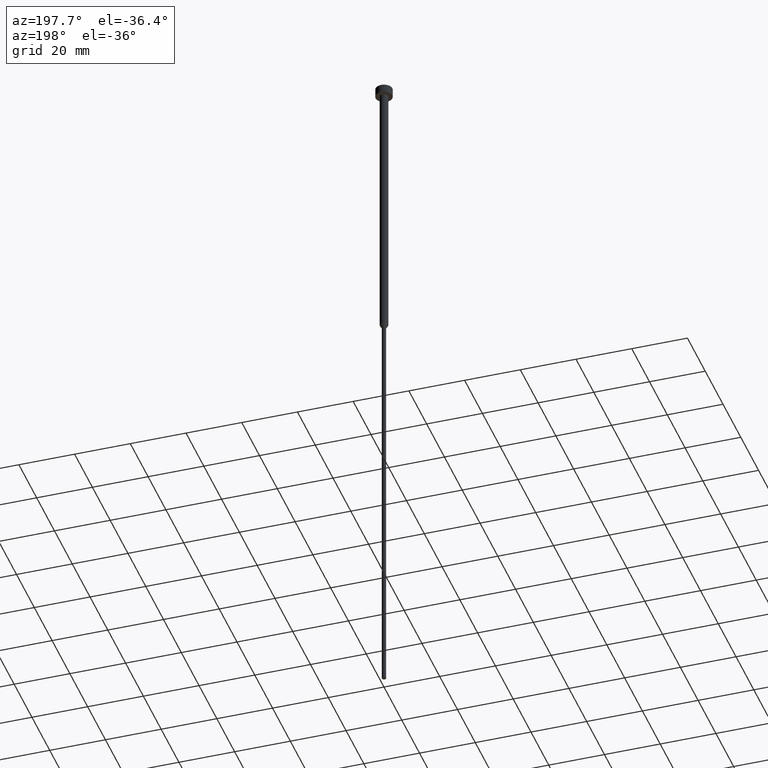
[diagram: clean part render]
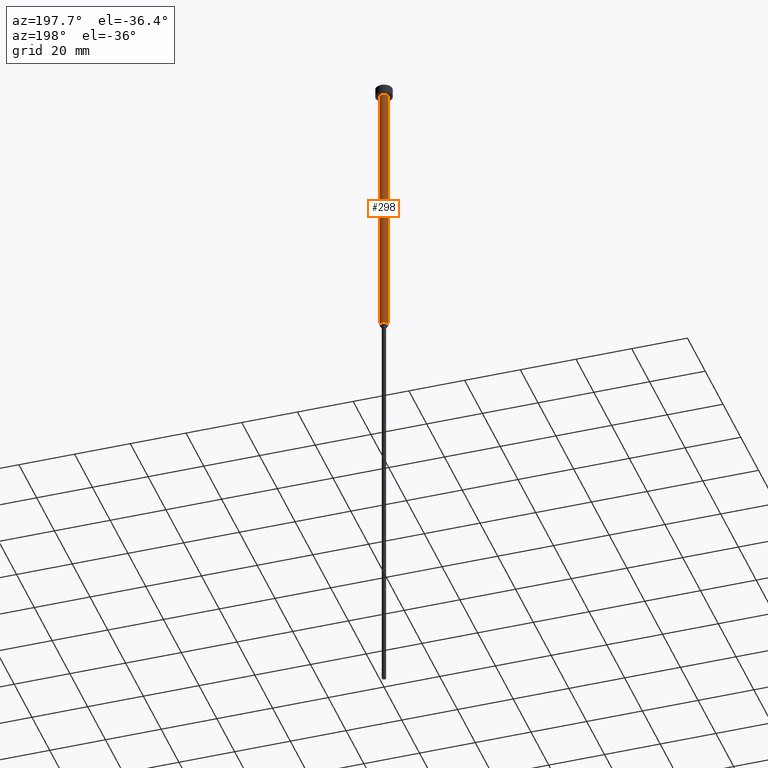
[diagram: same view with one face highlighted and labeled with its STEP entity id]
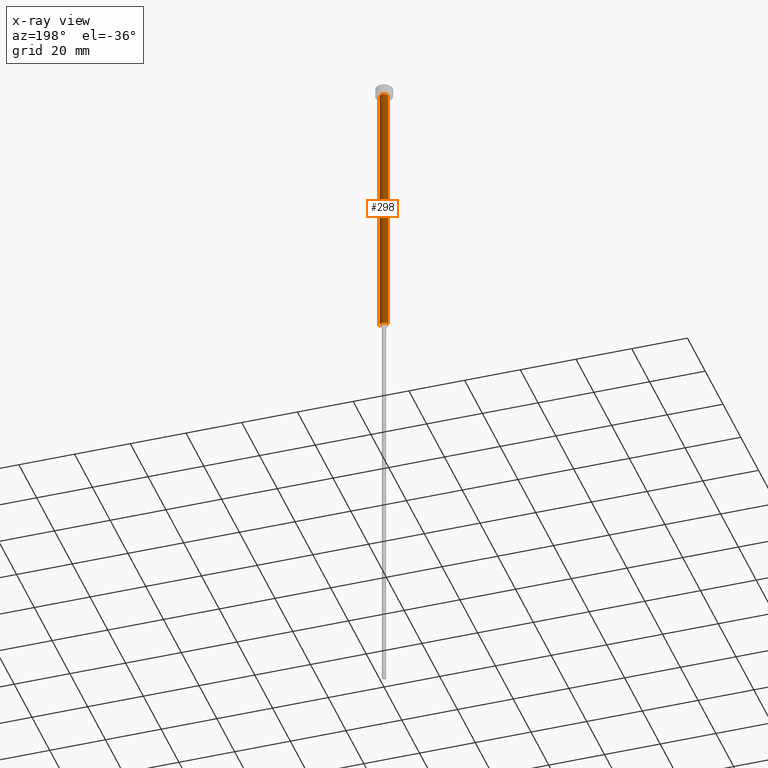
[diagram: x-ray of the same camera — body ghosted, the highlighted face saturated]
A machine part, auxiliary view. The second image highlights one B-rep face of the part: STEP entity #298.
The next image is the same camera in x-ray: the body ghosted, the highlighted face saturated — about 0% of this face is hidden behind the body in this view.
In plain terms, the highlighted cylindrical surface (edge-blend (fillet) strip) has radius 1.5 mm, axis along (-0, -0, 1).
Its self-contained STEP definition (entity closure, byte-faithful):
#9 = ORIENTED_EDGE ( 'NONE', *, *, #41, .T. ) ;
#17 = CARTESIAN_POINT ( 'NONE',  ( -1.500000000000000000, 1.836970198721029934E-16, 0.000000000000000000 ) ) ;
#26 = DIRECTION ( 'NONE',  ( -0.000000000000000000, -0.000000000000000000, 1.000000000000000000 ) ) ;
#33 = CARTESIAN_POINT ( 'NONE',  ( 0.000000000000000000, 0.000000000000000000, -100.0000000000000000 ) ) ;
#34 = CARTESIAN_POINT ( 'NONE',  ( 1.500000000000000000, 0.000000000000000000, -3.000000000000000888 ) ) ;
#41 = EDGE_CURVE ( 'NONE', #131, #254, #63, .T. ) ;
#43 = DIRECTION ( 'NONE',  ( -0.000000000000000000, -0.000000000000000000, 1.000000000000000000 ) ) ;
#58 = LINE ( 'NONE', #62, #353 ) ;
#62 = CARTESIAN_POINT ( 'NONE',  ( 1.500000000000000000, 0.000000000000000000, 0.000000000000000000 ) ) ;
#63 = LINE ( 'NONE', #17, #244 ) ;
#67 = VERTEX_POINT ( 'NONE', #34 ) ;
#84 = CARTESIAN_POINT ( 'NONE',  ( 1.500000000000000000, 0.000000000000000000, -100.0000000000000000 ) ) ;
#85 = AXIS2_PLACEMENT_3D ( 'NONE', #232, #198, #235 ) ;
#89 = AXIS2_PLACEMENT_3D ( 'NONE', #138, #26, #222 ) ;
#97 = DIRECTION ( 'NONE',  ( -0.000000000000000000, -0.000000000000000000, 1.000000000000000000 ) ) ;
#114 = DIRECTION ( 'NONE',  ( -0.000000000000000000, -0.000000000000000000, 1.000000000000000000 ) ) ;
#115 = ORIENTED_EDGE ( 'NONE', *, *, #286, .F. ) ;
#118 = DIRECTION ( 'NONE',  ( 1.000000000000000000, 0.000000000000000000, 0.000000000000000000 ) ) ;
#119 = AXIS2_PLACEMENT_3D ( 'NONE', #33, #97, #118 ) ;
#124 = FACE_OUTER_BOUND ( 'NONE', #253, .T. ) ;
#131 = VERTEX_POINT ( 'NONE', #187 ) ;
#138 = CARTESIAN_POINT ( 'NONE',  ( 0.000000000000000000, 0.000000000000000000, -3.000000000000000888 ) ) ;
#187 = CARTESIAN_POINT ( 'NONE',  ( -1.500000000000000000, 1.836970198721029934E-16, -100.0000000000000000 ) ) ;
#196 = ORIENTED_EDGE ( 'NONE', *, *, #304, .T. ) ;
#198 = DIRECTION ( 'NONE',  ( -0.000000000000000000, -0.000000000000000000, 1.000000000000000000 ) ) ;
#222 = DIRECTION ( 'NONE',  ( 1.000000000000000000, 0.000000000000000000, 0.000000000000000000 ) ) ;
#226 = CYLINDRICAL_SURFACE ( 'NONE', #85, 1.500000000000000000 ) ;
#230 = VERTEX_POINT ( 'NONE', #84 ) ;
#231 = ORIENTED_EDGE ( 'NONE', *, *, #249, .F. ) ;
#232 = CARTESIAN_POINT ( 'NONE',  ( 0.000000000000000000, 0.000000000000000000, 0.000000000000000000 ) ) ;
#235 = DIRECTION ( 'NONE',  ( 1.000000000000000000, 0.000000000000000000, 0.000000000000000000 ) ) ;
#236 = CIRCLE ( 'NONE', #119, 1.500000000000000000 ) ;
#241 = CIRCLE ( 'NONE', #89, 1.500000000000000000 ) ;
#244 = VECTOR ( 'NONE', #43, 1000.000000000000000 ) ;
#249 = EDGE_CURVE ( 'NONE', #67, #254, #241, .T. ) ;
#253 = EDGE_LOOP ( 'NONE', ( #196, #9, #231, #115 ) ) ;
#254 = VERTEX_POINT ( 'NONE', #303 ) ;
#286 = EDGE_CURVE ( 'NONE', #230, #67, #58, .T. ) ;
#298 = ADVANCED_FACE ( 'NONE', ( #124 ), #226, .T. ) ;
#303 = CARTESIAN_POINT ( 'NONE',  ( -1.500000000000000000, 1.836970198721029934E-16, -3.000000000000000888 ) ) ;
#304 = EDGE_CURVE ( 'NONE', #230, #131, #236, .T. ) ;
#353 = VECTOR ( 'NONE', #114, 1000.000000000000000 ) ;